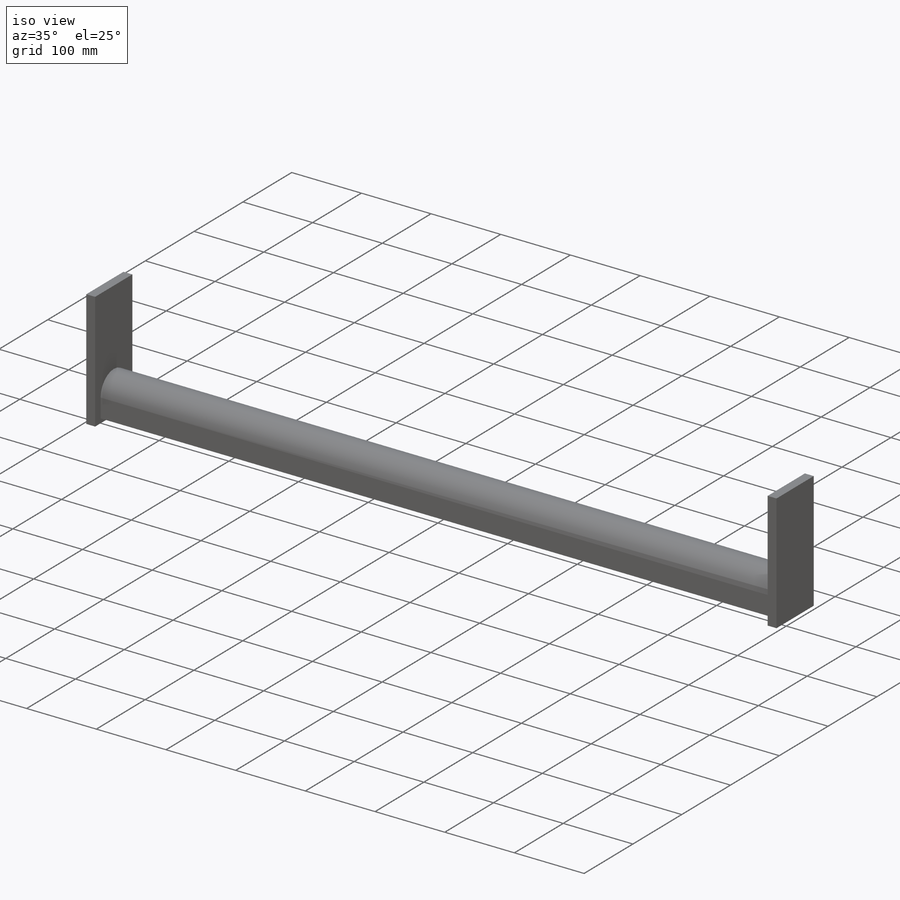
[diagram: iso view]
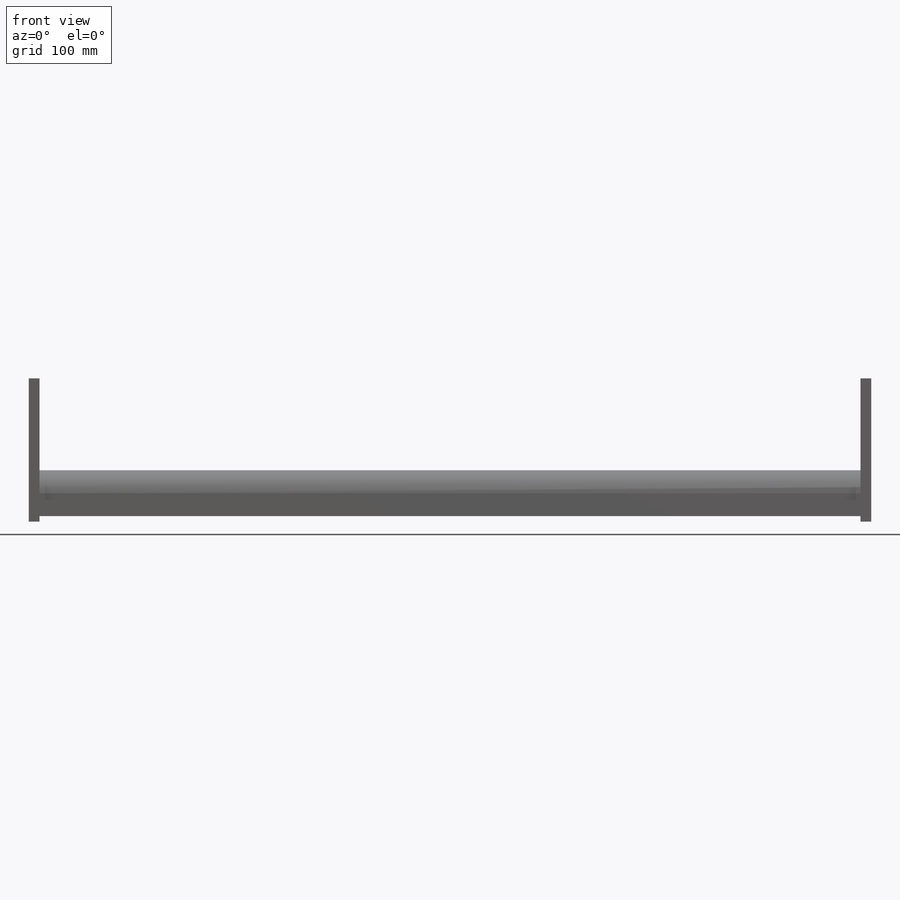
[diagram: front view]
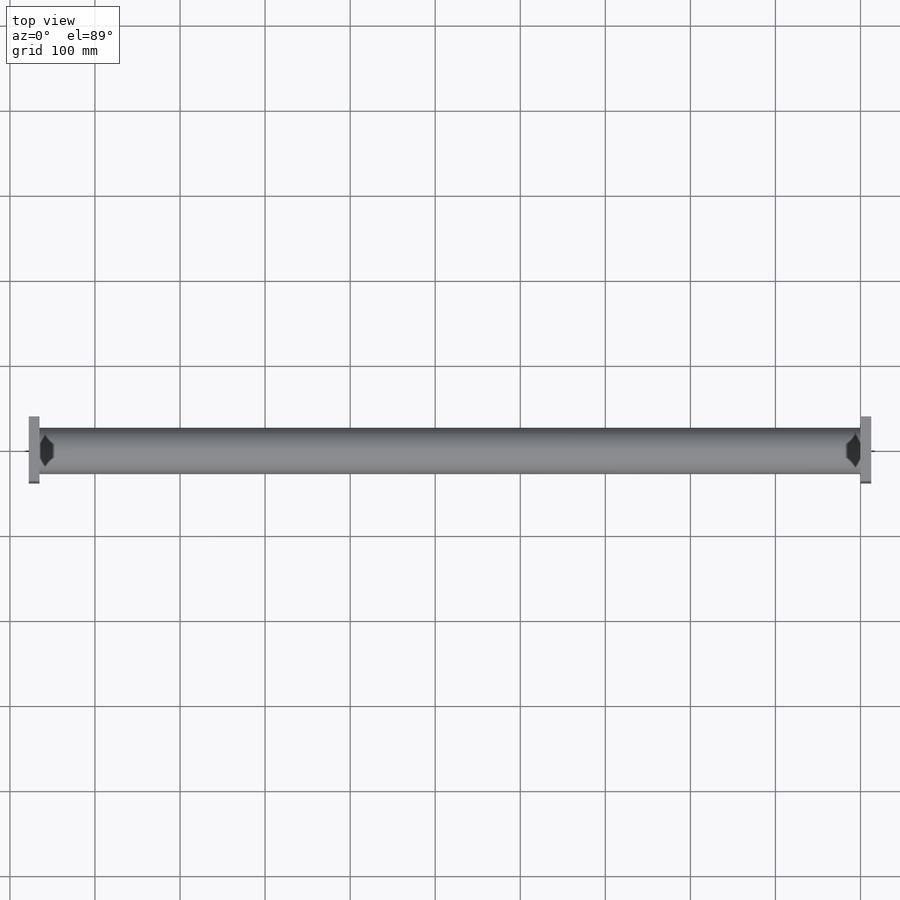
[diagram: top view]
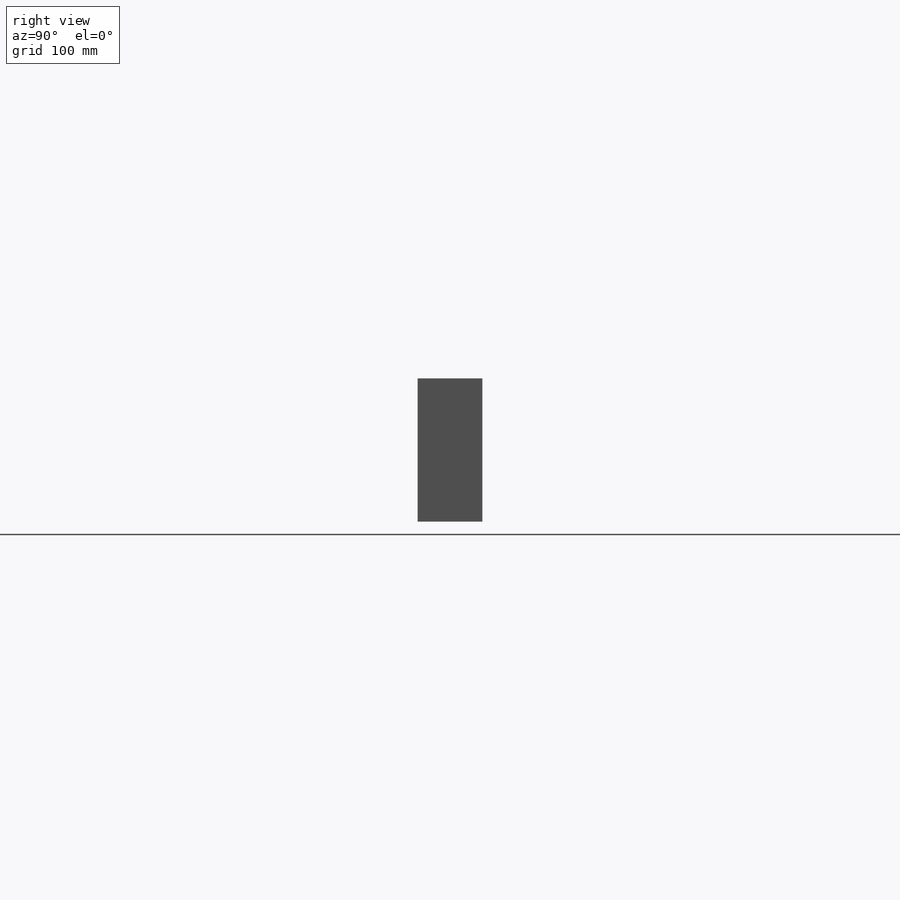
[diagram: right view]
SOLIDWORKS PART (.sldprt)
format: sldprt  version: not decoded by parser v0  size: 206,336 bytes
history: native  units: mm
features: sketch x5, extrude x3, material x1 (+12 scaffold rows collapsed)
feature tree (21):
  scaffold x12  (default folders/planes/origin — collapsed)
  material  "Material <not specified>"
  sketch  "Sketch1"  dims[D1=168.275mm D2=76.2mm]
  extrude  "Boss-Extrude1"  Depth=12.7mm
  sketch  "Sketch2"  dims[D3=26.9875mm D1=4.064mm D2=53.975mm D4=6.35mm]
  extrude  "Boss-Extrude2"  Depth=965.2mm
  sketch  "Sketch3"  dims[D1=0.0mm]
  extrude  "Boss-Extrude3"  Depth=12.7mm
  sketch  "Sketch4"  dims[D1=76.2mm D2=38.1mm]
  sketch  "Sketch5"
decode coverage: 7 of 8 modeling features carry decoded parameters
note: suppression state not decoded; provenance and decode notes live in map.json
